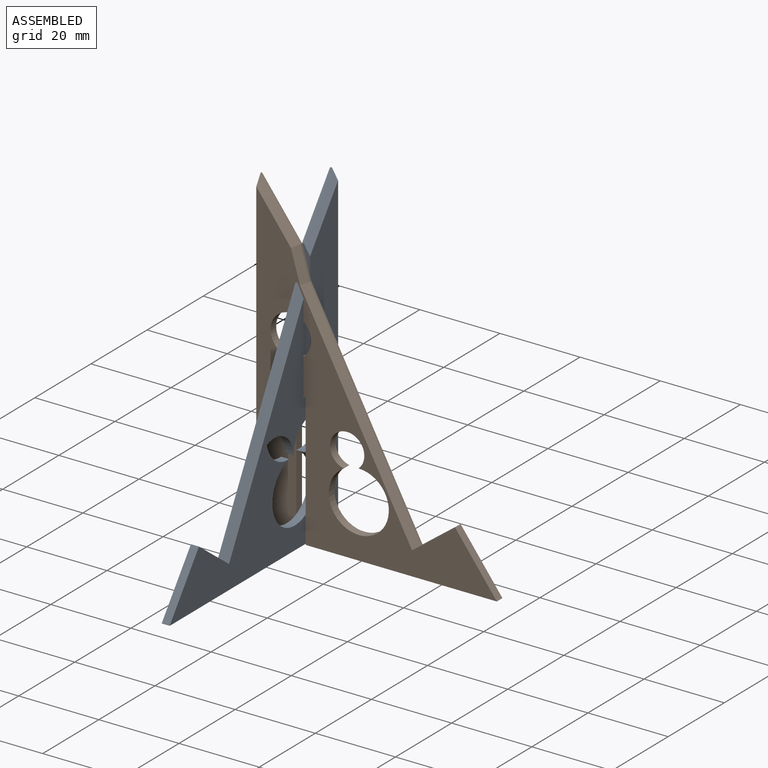
[diagram: assembled view]
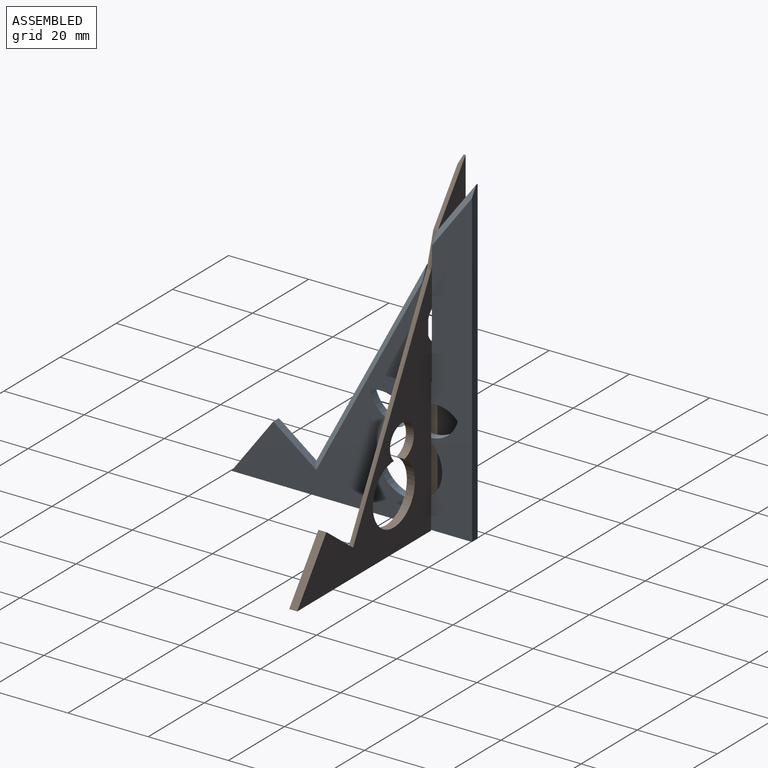
[diagram: assembled view, second angle]
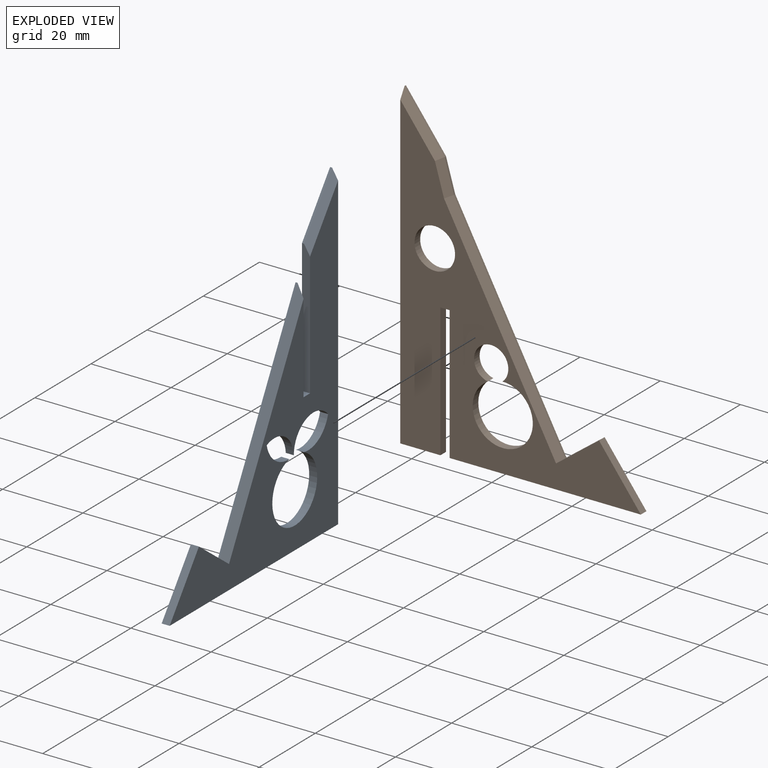
[diagram: exploded view]
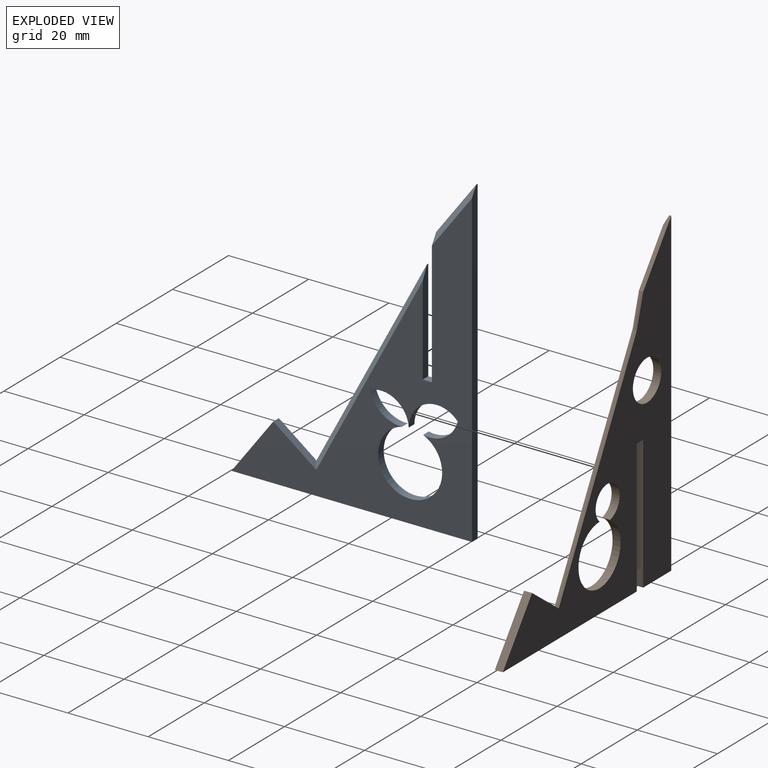
[diagram: exploded view, second angle]
ASSEMBLY  parts=2 mates=3
PART A: 18 faces, bbox 60x2x80 mm
  f0: cylinder r=8mm len=16mm, axis (0,1,0), area 89.8mm2, adj f1,f13,f14,f15
  f1: cylinder r=7.88mm len=8.02mm, axis (0,1,0), area 22mm2, adj f0,f2,f14,f15
  f2: cylinder r=6.94mm len=9.66mm, axis (0,1,0), area 26.5mm2, adj f1,f3,f14,f15
  f3: cylinder r=6.98mm len=12.21mm, axis (0,1,0), area 33.8mm2, adj f2,f13,f14,f15
  f4: plane 2.3x2mm, normal (0,0,1), area 4.6mm2, adj f5,f12,f14,f15
  f5: plane 25.39x2mm, normal (1,0,0), area 48.4mm2, adj f4,f6,f14,f15,f17
  f6: plane 51.95x27.77mm, normal (-0.88,0,0.47), area 29.5mm2, adj f5,f7,f15,f17
  f7: plane 10.72x8.04mm, normal (0.6,0,0.8), area 24.9mm2, adj f6,f8,f14,f15,f17
  f8: plane 13.9x10.43mm, normal (-0.8,0,0.6), area 34.8mm2, adj f7,f9,f14,f15
  f9: plane 60x2mm, normal (0,0,-1), area 120mm2, adj f8,f10,f14,f15
  f10: plane 80x2mm, normal (1,0,0), area 158.1mm2, adj f9,f11,f14,f15,f16
  f11: plane 13.33x10mm, normal (-0.8,0,0.6), area 8.3mm2, adj f10,f12,f15,f16
  f12: plane 33.33x2mm, normal (-1,0,0), area 64.8mm2, adj f4,f11,f14,f15,f16
  f13: cylinder r=7.31mm len=8.63mm, axis (0,1,0), area 22.4mm2, adj f0,f3,f14,f15
  f14: plane 77.5x60mm, normal (0,-1,0), area 1466.6mm2, adj f0,f1,f2,f3,f4,f5,f7,f8
  f15: plane 80x60mm, normal (0,1,0), area 1578mm2, adj f0,f1,f2,f3,f4,f5,f6,f7
  f16: plane 15.83x10mm, normal (-0.57,-0.71,0.42), area 35.4mm2, adj f10,f11,f12,f14
  f17: plane 52.86x27.77mm, normal (-0.62,-0.71,0.33), area 122.2mm2, adj f5,f6,f7,f14
PART B: 19 faces, bbox 60x2x80 mm
  f0: cylinder r=4.28mm len=8.56mm, axis (0,1,0), area 45.8mm2, adj f13,f14,f15
  f1: plane 51.95x27.77mm, normal (0.88,0,0.47), area 29.5mm2, adj f2,f12,f15,f16
  f2: plane 7.94x2.3mm, normal (0.96,0,0.28), area 4.1mm2, adj f1,f3,f15,f17
  f3: plane 13.33x10mm, normal (0.8,0,0.6), area 8.3mm2, adj f2,f4,f15,f18
  f4: plane 80x2mm, normal (-1,0,0), area 158.1mm2, adj f3,f5,f14,f15,f18
  f5: plane 10x2mm, normal (0,0,-1), area 20mm2, adj f4,f6,f14,f15
  f6: plane 33.33x2mm, normal (1,0,0), area 66.7mm2, adj f5,f7,f14,f15
  f7: plane 2.3x2mm, normal (0,0,-1), area 4.6mm2, adj f6,f8,f14,f15
  f8: plane 33.33x2mm, normal (-1,0,0), area 66.7mm2, adj f7,f9,f14,f15
  f9: plane 47.7x2mm, normal (0,0,-1), area 95.4mm2, adj f8,f10,f14,f15
  f10: plane 13.9x10.43mm, normal (0.8,0,0.6), area 34.8mm2, adj f9,f12,f14,f15
  f11: cylinder r=5.06mm len=10.11mm, axis (0,1,0), area 63.5mm2, adj f14,f15
  f12: plane 10.72x8.04mm, normal (-0.6,0,0.8), area 24.9mm2, adj f1,f10,f14,f15,f16
  f13: cylinder r=7.5mm len=15mm, axis (0,1,0), area 86.5mm2, adj f0,f14,f15
  f14: plane 77.5x60mm, normal (0,-1,0), area 1443.9mm2, adj f0,f4,f5,f6,f7,f8,f9,f10
  f15: plane 80x60mm, normal (0,1,0), area 1568.2mm2, adj f0,f1,f2,f3,f4,f5,f6,f7
  f16: plane 52.86x29.16mm, normal (0.62,-0.71,0.33), area 125.4mm2, adj f1,f12,f14,f17
  f17: plane 8.51x3.66mm, normal (0.68,-0.71,0.2), area 17.4mm2, adj f2,f14,f16,f18
  f18: plane 14.01x10mm, normal (0.57,-0.71,0.42), area 32.9mm2, adj f3,f4,f14,f17
PLACE A rot(axis=(0,0,1),90deg) t=(6.01,2.37,-35.83)mm
PLACE B rot(axis=(0.34,-0.71,-0.62),0deg) t=(-9.99,-7.63,-35.83)mm
MATE planar A.f12 <-> B.f15  axis (0,-1,0) through (6.99,-7.63,13.71)mm
MATE planar B.f6 <-> A.f15  axis (1,0,0) through (6.01,-8.63,-19.17)mm
MATE planar A.f9 <-> B.f9  axis (0,0,-1) through (7.01,-27.63,-35.83)mm
